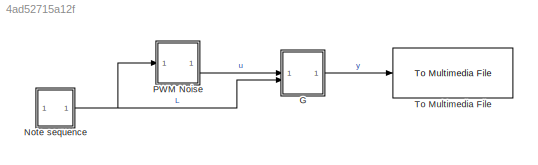
MODEL slx_4ad52715a12f
KIND model
CONFIG AbsTol = auto
CONFIG EnableMultiTasking = off
CONFIG FixedStep = auto
CONFIG MaxStep = auto
CONFIG MinStep = auto
CONFIG RelTol = 1e-3
CONFIG SampleTimeConstraint = Unconstrained
CONFIG SolverName = FixedStepAuto
CONFIG StartTime = 0.0
CONFIG StopTime = 15
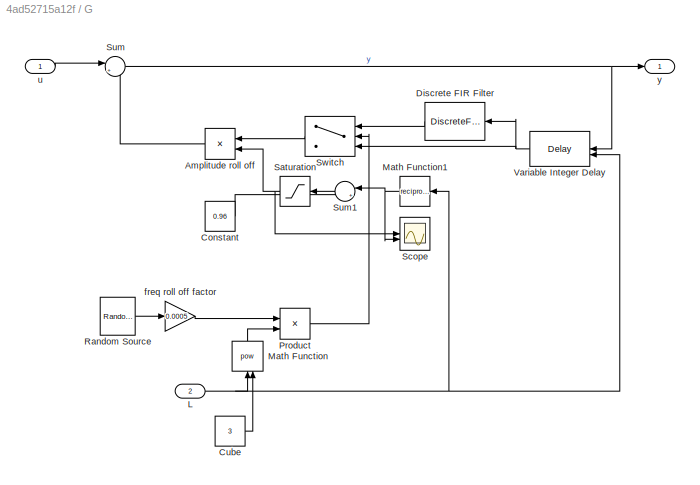
BLOCK [SubSystem] G
BLOCK [Product] G/Amplitude roll off
  NameLocation = top
BLOCK [Constant] G/Constant
  Value = 0.96
BLOCK [Constant] G/Cube
  Value = 3
BLOCK [DiscreteFir] G/Discrete FIR Filter
  InputPortMap = u0
  OutputPortMap = o0
BLOCK [Inport] G/L
  Port = 2
BLOCK [Math] G/Math Function
  NameLocation = right
  Operator = pow
BLOCK [Math] G/Math Function1
  NameLocation = top
  Operator = reciprocal
BLOCK [Product] G/Product
BLOCK [Reference] G/Random Source  REF=dspsrcs4/Random
Source
  SourceBlock = dspsrcs4/Random\nSource
  SourceType = Random Source
  UserDataPersistent = on
BLOCK [Saturate] G/Saturation
  LowerLimit = 0
  NameLocation = top
  UpperLimit = 1
BLOCK [Scope] G/Scope
  Floating = off
  NumInputPorts = 2
  ScopeSpecificationString = Simulink.scopes.TimeScopeBlockCfg('CurrentConfiguration', extmgr.ConfigurationSet(extmgr.Configuration('Core','General UI',true),extmgr.Configuration('Core','Source UI',true),extmgr.Configuration('Sources','WiredSimulink',true),extmgr.Configuration('Visuals','Time Domain',true,'SerializedDisplays',{struct('MinYLimReal','-0.08279','MaxYLimReal','1.28057','YLabelReal','','MinYLimMag','0.00000','MaxY...<+1417ch>
BLOCK [Sum] G/Sum
  Inputs = |++
BLOCK [Sum] G/Sum1
  Inputs = |++
  NameLocation = top
BLOCK [Switch] G/Switch
  Criteria = u2 > Threshold
  InputSameDT = off
  NameLocation = top
  SaturateOnIntegerOverflow = off
  Threshold = 1
BLOCK [Delay] G/Variable Integer Delay
  DelayLengthSource = Input port
  DelayLengthUpperLimit = 256
  InputPortMap = u0,p1
  PreventDirectFeedthrough = on
  UseCircularBuffer = on
BLOCK [Gain] G/freq roll off factor
  Gain = 0.0005
BLOCK [Inport] G/u
BLOCK [Outport] G/y
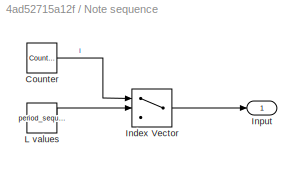
BLOCK [SubSystem] Note sequence
BLOCK [Reference] Note sequence/Counter  REF=simulink/Sources/Counter
Free-Running
  SourceBlock = simulink/Sources/Counter\nFree-Running
  SourceType = Counter Free-Running
BLOCK [MultiPortSwitch] Note sequence/Index Vector
  DataPortOrder = Zero-based contiguous
  InputSameDT = off
  Inputs = 1
  SaturateOnIntegerOverflow = off
  zeroidx = on
BLOCK [Outport] Note sequence/Input
BLOCK [Constant] Note sequence/L values
  Value = period_sequence
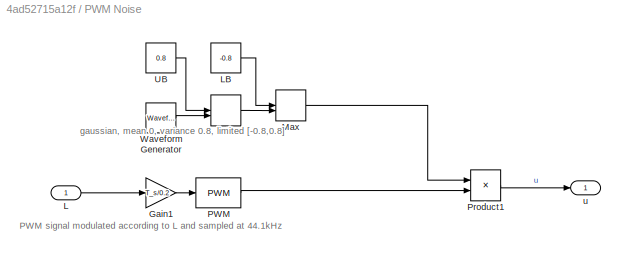
BLOCK [SubSystem] PWM Noise
BLOCK [Gain] PWM Noise/Gain1
  Gain = T_s/0.2
BLOCK [Inport] PWM Noise/L
BLOCK [Constant] PWM Noise/LB
  Value = -0.8
BLOCK [MinMax] PWM Noise/Max
  Function = max
  Inputs = 2
BLOCK [MinMax] PWM Noise/Min
  Inputs = 2
BLOCK [Reference] PWM Noise/PWM  REF=simulink/Discontinuities/PWM
  DisableCoverage = on
  SourceBlock = simulink/Discontinuities/PWM
  SourceType = PWM
BLOCK [Product] PWM Noise/Product1
BLOCK [Constant] PWM Noise/UB
  Value = 0.8
BLOCK [Reference] PWM Noise/Waveform Generator  REF=simulink/Sources/Waveform
Generator
  SourceBlock = simulink/Sources/Waveform\nGenerator
  SourceType = WaveformGenerator
BLOCK [Outport] PWM Noise/u
BLOCK [Reference] To Multimedia File  REF=dspvision/To Multimedia File
  LibrarySourceBlock = dspsnks4/To Multimedia File
  SourceBlock = dspvision/To Multimedia File
  SourceType = To Multimedia File
ANNOTATION PWM Noise: PWM signal modulated according to L and sampled at 44.1kHz
ANNOTATION PWM Noise: gaussian, mean 0, variance 0.8, limited [-0.8,0.8]
LINE G/Amplitude roll off:1 -> G/Sum:2
LINE G/Constant:1 -> G/Sum1:2
LINE G/Cube:1 -> G/Math Function:2
LINE G/Discrete FIR Filter:1 -> G/Switch:1
NET G/L:1 -> G/Math Function1:1, G/Math Function:1, G/Variable Integer Delay:2
NET G/Math Function1:1 -> G/Scope:2, G/Sum1:1
LINE G/Math Function:1 -> G/Product:2
LINE G/Product:1 -> G/Switch:2
LINE G/Random Source:1 -> G/freq roll off factor:1
NET G/Saturation:1 -> G/Amplitude roll off:2, G/Scope:1
LINE G/Sum1:1 -> G/Saturation:1
NET G/Sum:1 -> G/Variable Integer Delay:1, G/y:1
LINE G/Switch:1 -> G/Amplitude roll off:1
NET G/Variable Integer Delay:1 -> G/Discrete FIR Filter:1, G/Switch:3
LINE G/freq roll off factor:1 -> G/Product:1
LINE G/u:1 -> G/Sum:1
LINE G:1 -> To Multimedia File:1
LINE Note sequence/Counter:1 -> Note sequence/Index Vector:1
LINE Note sequence/Index Vector:1 -> Note sequence/Input:1
LINE Note sequence/L values:1 -> Note sequence/Index Vector:2
NET Note sequence:1 -> G:2, PWM Noise:1
LINE PWM Noise/Gain1:1 -> PWM Noise/PWM:1
LINE PWM Noise/L:1 -> PWM Noise/Gain1:1
LINE PWM Noise/LB:1 -> PWM Noise/Max:1
LINE PWM Noise/Max:1 -> PWM Noise/Product1:1
LINE PWM Noise/Min:1 -> PWM Noise/Max:2
LINE PWM Noise/PWM:1 -> PWM Noise/Product1:2
LINE PWM Noise/Product1:1 -> PWM Noise/u:1
LINE PWM Noise/UB:1 -> PWM Noise/Min:1
LINE PWM Noise/Waveform Generator:1 -> PWM Noise/Min:2
LINE PWM Noise:1 -> G:1
note: NET lines group one-source signal fan-out (src -> all destinations, sorted); 1:1 wires keep LINE
